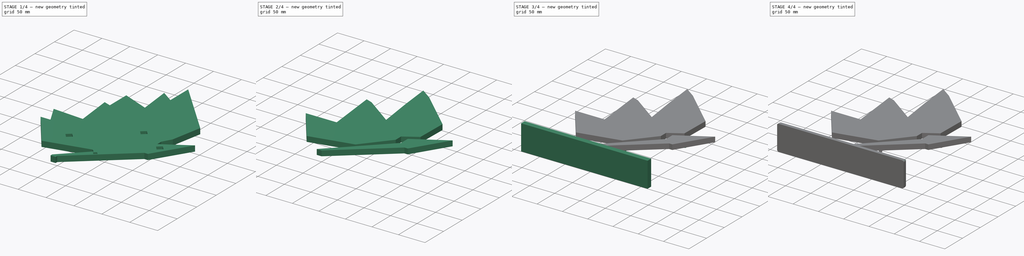
[diagram: build sequence overview — one tinted view per stage of 4, left to right]
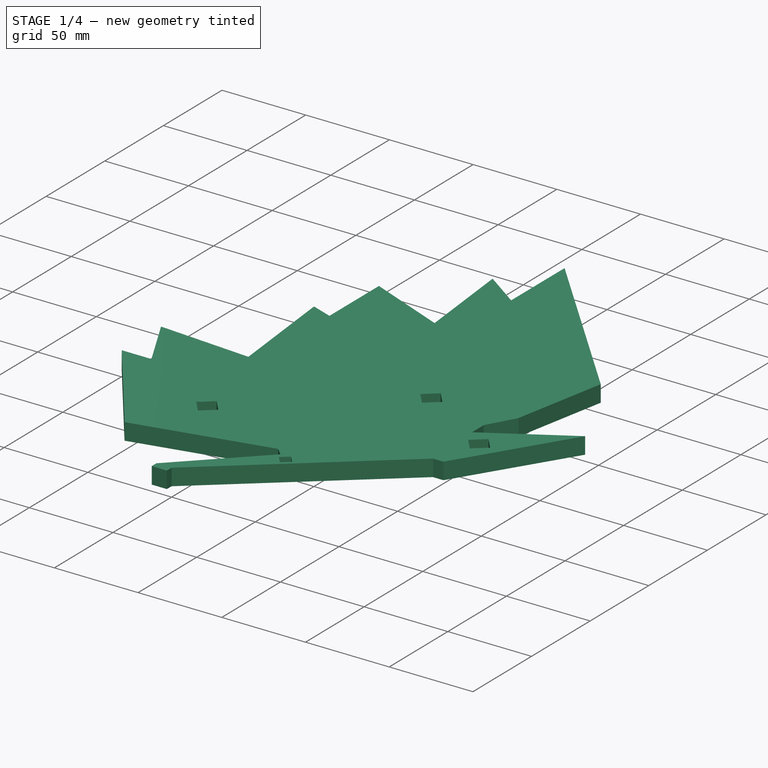
[diagram: stage 1 of 4 — iso view after this stage's code; geometry added in this stage tinted green]
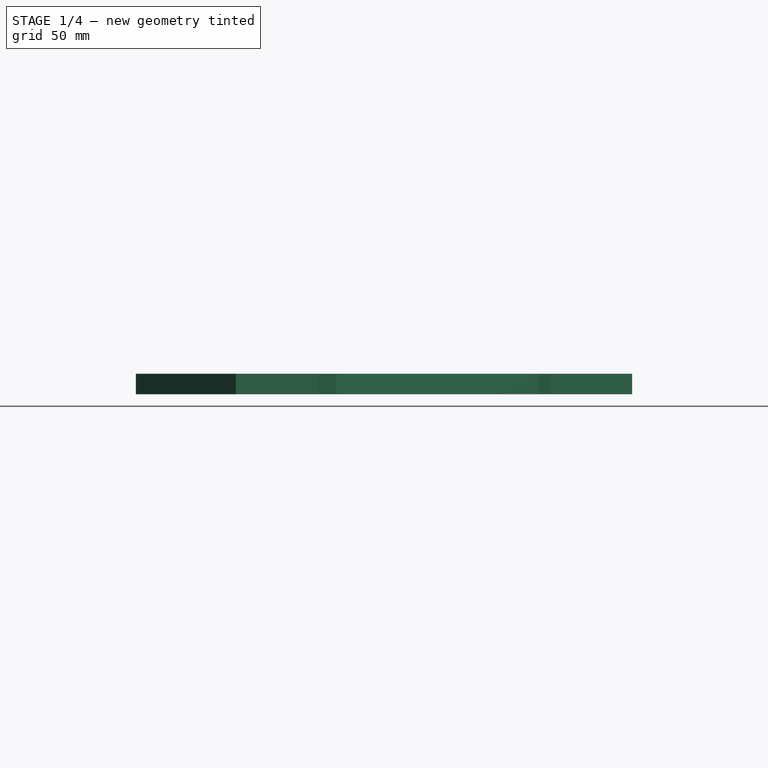
[diagram: stage 1 of 4 — front view after this stage's code; geometry added in this stage tinted green]
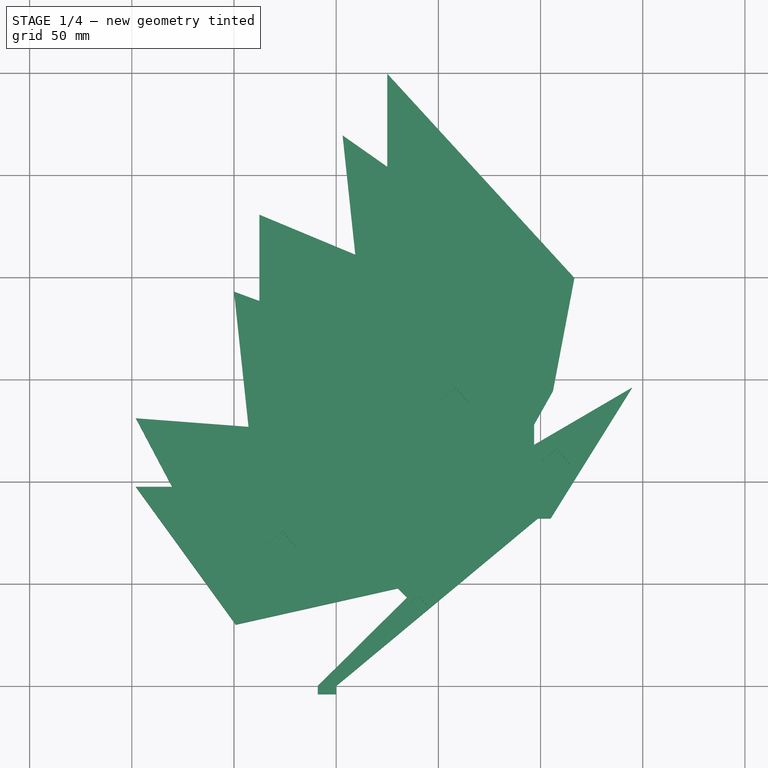
[diagram: stage 1 of 4 — top view after this stage's code; geometry added in this stage tinted green]
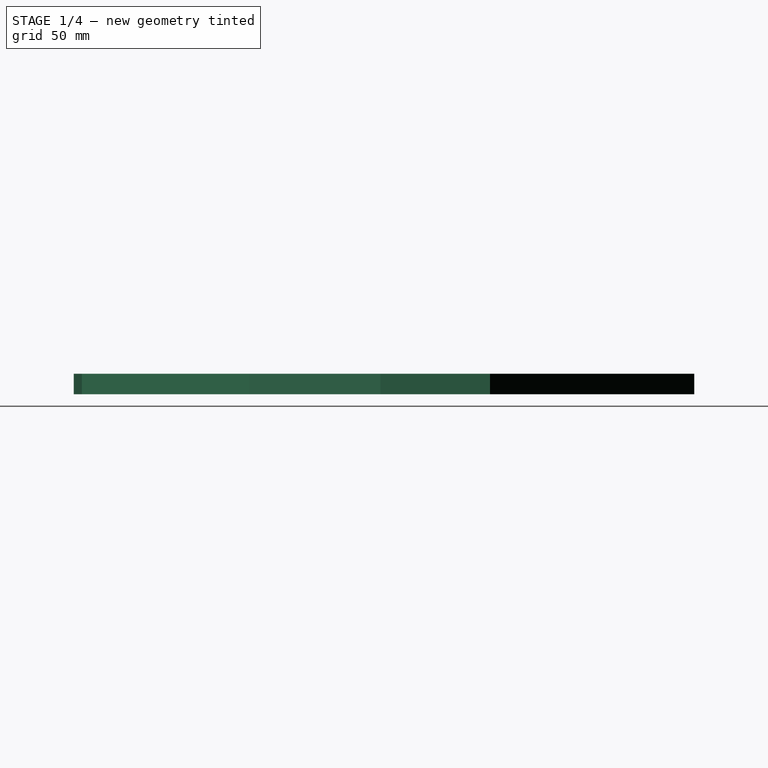
[diagram: stage 1 of 4 — right view after this stage's code; geometry added in this stage tinted green]
FCSTD DOCUMENT  (FreeCAD 0.21R33771 (Git))
Label: Monarch_v2
License: All rights reserved
LicenseURL: https://en.wikipedia.org/wiki/All_rights_reserved
objects: Sketcher::SketchObject×8, PartDesign::Pad×7, PartDesign::Body×4, PartDesign::ShapeBinder×3, PartDesign::Pocket×2, PartDesign::Fillet×2, Image::ImagePlane×1
note: 37 computed .brp shape members not serialized (recipe doc carries the construction recipe); baked Part::Feature solids carry a one-line shape summary decoded from their .brp

FEATURE [Sketcher::SketchObject] Sketch
  FullyConstrained = true
  MapMode = 5
  Support = -> [XY_Plane]
  sketch-geometry (23):
    g0: LineSegment StartX=0 StartY=0 StartZ=0 EndX=98.6905 EndY=82.0291 EndZ=0
    g1: LineSegment StartX=98.6905 StartY=82.0291 StartZ=0 EndX=104.941 EndY=82.0291 EndZ=0
    g2: LineSegment StartX=104.941 StartY=82.0291 StartZ=0 EndX=144.813 EndY=146.012 EndZ=0
    g3: LineSegment StartX=144.813 StartY=146.012 StartZ=0 EndX=96.8168 EndY=117.965 EndZ=0
    g4: LineSegment StartX=96.8168 StartY=117.965 StartZ=0 EndX=96.8168 EndY=127.98 EndZ=0
    g5: LineSegment StartX=96.8168 StartY=127.98 StartZ=0 EndX=106.058 EndY=144.386 EndZ=0
    g6: LineSegment StartX=106.058 StartY=144.386 StartZ=0 EndX=116.552 EndY=199.659 EndZ=0
    g7: LineSegment StartX=116.552 StartY=199.659 StartZ=0 EndX=24.9483 EndY=299.626 EndZ=0
    g8: LineSegment StartX=24.9483 StartY=299.626 StartZ=0 EndX=24.9483 EndY=254.066 EndZ=0
    g9: LineSegment StartX=24.9483 StartY=254.066 StartZ=0 EndX=3.13638 EndY=269.396 EndZ=0
    g10: LineSegment StartX=3.13638 StartY=269.396 StartZ=0 EndX=9.35371 EndY=211.026 EndZ=0
    g11: LineSegment StartX=9.35371 StartY=211.026 StartZ=0 EndX=-37.5998 EndY=230.6 EndZ=0
    g12: LineSegment StartX=-37.5998 StartY=230.6 StartZ=0 EndX=-37.5998 EndY=188.37 EndZ=0
    g13: LineSegment StartX=-37.5998 StartY=188.37 StartZ=0 EndX=-50.001 EndY=192.95 EndZ=0
    g14: LineSegment StartX=-50.001 StartY=192.95 StartZ=0 EndX=-42.8819 EndY=126.772 EndZ=0
    g15: LineSegment StartX=-42.8819 StartY=126.772 StartZ=0 EndX=-97.9927 EndY=130.964 EndZ=0
    g16: LineSegment StartX=-97.9927 StartY=130.964 StartZ=0 EndX=-80.2804 EndY=97.4687 EndZ=0
    g17: LineSegment StartX=-80.2804 StartY=97.4687 StartZ=0 EndX=-98.0404 EndY=97.4687 EndZ=0
    g18: LineSegment StartX=-98.0404 StartY=97.4687 StartZ=0 EndX=-49.1249 EndY=30.0187 EndZ=0
    g19: LineSegment StartX=-49.1249 StartY=30.0187 StartZ=0 EndX=30.198 EndY=47.7931 EndZ=0
    g20: LineSegment StartX=30.198 StartY=47.7931 StartZ=0 EndX=34.6662 EndY=43.2811 EndZ=0
    g21: LineSegment StartX=34.6662 StartY=43.2811 StartZ=0 EndX=-9.04 EndY=0 EndZ=0
    g22: LineSegment StartX=-9.04 StartY=0 StartZ=0 EndX=0 EndY=0 EndZ=0
  constraints (68):
    c: Coincident(g-1,g0)
    c: Coincident(g0,g1)
    c: Horizontal(g1)
    c: Coincident(g1,g2)
    c: Coincident(g2,g3)
    c: Coincident(g3,g4)
    c: Vertical(g4)
    c: Coincident(g4,g5)
    c: Coincident(g5,g6)
    c: Coincident(g6,g7)
    c: Coincident(g7,g8)
    c: Vertical(g8)
    c: Coincident(g8,g9)
    c: Coincident(g9,g10)
    c: Coincident(g10,g11)
    c: Coincident(g11,g12)
    c: Vertical(g12)
    c: Coincident(g12,g13)
    c: Coincident(g13,g14)
    c: Coincident(g14,g15)
    c: Coincident(g15,g16)
    c: Coincident(g16,g17)
    c: Horizontal(g17)
    c: Coincident(g17,g18)
    c: Coincident(g18,g19)
    c: Coincident(g19,g20)
    c: Coincident(g20,g21)
    c: PointOnObject(g21,g-1)
    c: Coincident(g21,g22)
    c: Coincident(g22,g0)
    c: Angle(g20,g21) = 1.5708
    c: Angle(g22,g21) = 0.780511
    c: DistanceX(g22,g22) = 9.04
    c: Distance(g21) = 61.51
    c: Distance(g20) = 6.35
    c: Angle(g19,g20) = 2.13087
    c: Distance(g19) = 81.29
    c: Angle(g19,g18) = 1.97781
    c: Distance(g18) = 83.32
    c: DistanceX(g17,g17) = 17.76
    c: Angle(g16,g17) = 1.08437
    c: Distance(g16) = 37.89
    c: Angle(g16,g15) = 1.00845
    c: Distance(g15) = 55.27
    c: Angle(g14,g15) = 1.38771
    c: Distance(g14) = 66.56
    c: Angle(g14,g13) = 1.10985
    c: Distance(g13) = 13.22
    c: DistanceY(g12,g12) = 42.23
    c: Angle(g12,g11) = 1.17583
    c: Distance(g11) = 50.87
    c: Angle(g10,g11) = 1.06971
    c: Distance(g10) = 58.7
    c: Angle(g10,g9) = 0.85207
    c: Distance(g9) = 26.66
    c: DistanceY(g8,g8) = 45.56
    c: Angle(g8,g7) = 0.741765
    c: Distance(g7) = 135.59
    c: Angle(g7,g6) = 2.2122
    c: Angle(g6,g5) = 2.81626
    c: Distance(g6) = 56.26
    c: Distance(g5) = 18.83
    c: Distance(g0) = 128.33
    c: Distance(g1) = 6.25
    c: Angle(g2,g1) = 2.12808
    c: Distance(g2) = 75.39
    c: Angle(g3,g2) = 0.484678
    c: Distance(g3) = 55.59
FEATURE [Image::ImagePlane] k1y02ft4k2461
  Placement = pos=(23.5,150,0) rot=(0,0,1;0rad)
  XSize = 244.289
  YSize = 300.835
FEATURE [PartDesign::Pad] Pad
  Direction = (0,0,1)
  Length = 10
  Length2 = 10
  Profile = -> Sketch
  ReferenceAxis = -> Sketch [N_Axis]
  Type = 0
FEATURE [Sketcher::SketchObject] Sketch001
  ExternalGeometry = -> [Pad]
  FullyConstrained = true
  MapMode = 5
  Placement = pos=(0,0,10) rot=(0,0,1;0rad)
  Support = -> [Pad]
  sketch-geometry (20):
    g0: LineSegment StartX=-33.8439 StartY=69.3944 StartZ=0 EndX=-27.4518 EndY=61.704 EndZ=0
    g1: LineSegment StartX=-27.4518 StartY=61.704 StartZ=0 EndX=-19.7615 EndY=68.0961 EndZ=0
    g2: LineSegment StartX=-19.7615 StartY=68.0961 StartZ=0 EndX=-26.1535 EndY=75.7864 EndZ=0
    g3: LineSegment StartX=-26.1535 StartY=75.7864 StartZ=0 EndX=-33.8439 EndY=69.3944 EndZ=0
    g4: LineSegment StartX=50.7502 StartY=139.707 StartZ=0 EndX=57.1422 EndY=132.016 EndZ=0
    g5: LineSegment StartX=57.1422 StartY=132.016 StartZ=0 EndX=64.8326 EndY=138.409 EndZ=0
    g6: LineSegment StartX=64.8326 StartY=138.409 StartZ=0 EndX=58.4406 EndY=146.099 EndZ=0
    g7: LineSegment StartX=58.4406 StartY=146.099 StartZ=0 EndX=50.7502 EndY=139.707 EndZ=0
    g8: LineSegment StartX=-19.7615 StartY=68.0961 StartZ=0 EndX=57.1422 EndY=132.016 EndZ=0
    g9: LineSegment StartX=57.1422 StartY=132.016 StartZ=0 EndX=98.6905 EndY=82.0291 EndZ=0
    g10: LineSegment StartX=-19.7615 StartY=68.0961 StartZ=0 EndX=21.7868 EndY=18.1087 EndZ=0
    g11: LineSegment StartX=100.298 StartY=109.719 StartZ=0 EndX=106.691 EndY=102.029 EndZ=0
    g12: LineSegment StartX=106.691 StartY=102.029 StartZ=0 EndX=114.381 EndY=108.421 EndZ=0
    g13: LineSegment StartX=114.381 StartY=108.421 StartZ=0 EndX=107.989 EndY=116.111 EndZ=0
    g14: LineSegment StartX=107.989 StartY=116.111 StartZ=0 EndX=100.298 EndY=109.719 EndZ=0
    g15: LineSegment StartX=35.8991 StartY=40.2411 StartZ=0 EndX=39.7343 EndY=35.6268 EndZ=0
    g16: LineSegment StartX=39.7343 StartY=35.6268 StartZ=0 EndX=44.3486 EndY=39.4621 EndZ=0
    g17: LineSegment StartX=44.3486 StartY=39.4621 StartZ=0 EndX=40.5133 EndY=44.0763 EndZ=0
    g18: LineSegment StartX=40.5133 StartY=44.0763 StartZ=0 EndX=35.8991 EndY=40.2411 EndZ=0
    g19: LineSegment StartX=39.7343 StartY=35.6268 StartZ=0 EndX=41.0127 EndY=34.0888 EndZ=0
  constraints (58):
    c: Coincident(g0,g1)
    c: Coincident(g1,g2)
    c: Coincident(g2,g3)
    c: Coincident(g3,g0)
    c: Parallel(g3,g1)
    c: Parallel(g0,g2)
    c: Angle(g1,g0) = 1.5708
    c: Equal(g0,g1)
    c: Parallel(g1,g-3)
    c: Coincident(g4,g5)
    c: Coincident(g5,g6)
    c: Coincident(g6,g7)
    c: Coincident(g7,g4)
    c: Equal(g4,g5)
    c: Parallel(g4,g6)
    c: Parallel(g7,g5)
    c: Angle(g5,g4) = 1.5708
    c: Parallel(g1,g5)
    c: Equal(g2,g4)
    c: Distance(g1) = 10
    c: Coincident(g8,g1)
    c: Coincident(g8,g4)
    c: Parallel(g1,g8)
    c: Coincident(g9,g4)
    c: Coincident(g9,g-3)
    c: Angle(g9,g-3) = 1.5708
    c: Coincident(g10,g1)
    c: PointOnObject(g10,g-3)
    c: Parallel(g10,g9)
    c: Distance(g10) = 65
    c: Distance(g8) = 100
    c: Coincident(g11,g12)
    c: Coincident(g12,g13)
    c: Coincident(g13,g14)
    c: Coincident(g14,g11)
    c: Parallel(g11,g13)
    c: Parallel(g14,g12)
    c: Angle(g12,g11) = 1.5708
    c: Parallel(g12,g-3)
    c: Equal(g11,g12)
    c: Equal(g6,g13)
    c: Coincident(g15,g16)
    c: Coincident(g16,g17)
    c: Coincident(g17,g18)
    c: Coincident(g18,g15)
    c: Equal(g15,g16)
    c: Parallel(g15,g17)
    c: Parallel(g18,g16)
    c: Angle(g16,g15) = 1.5708
    c: Parallel(g16,g-3)
    c: DistanceX(g9,g11) = 8
    c: DistanceY(g9,g11) = 20
    c: Distance(g15) = 6
    c: Coincident(g19,g15)
    c: PointOnObject(g19,g-3)
    c: Angle(g-3,g19) = 1.5708
    c: Distance(g19) = 2
    c: Distance(g9,g19) = 75
FEATURE [PartDesign::Pocket] Pocket
  BaseFeature = -> Pad
  Direction = (0,0,-1)
  Length = 5
  Length2 = 5
  Profile = -> Sketch001
  ReferenceAxis = -> Sketch001 [N_Axis]
  Type = 0
FEATURE [PartDesign::Pad] Pad001
  BaseFeature = -> Pocket
  Direction = (0,-1,0)
  Length = 4
  Length2 = 10
  Profile = -> Pocket [Face2]
  Type = 0
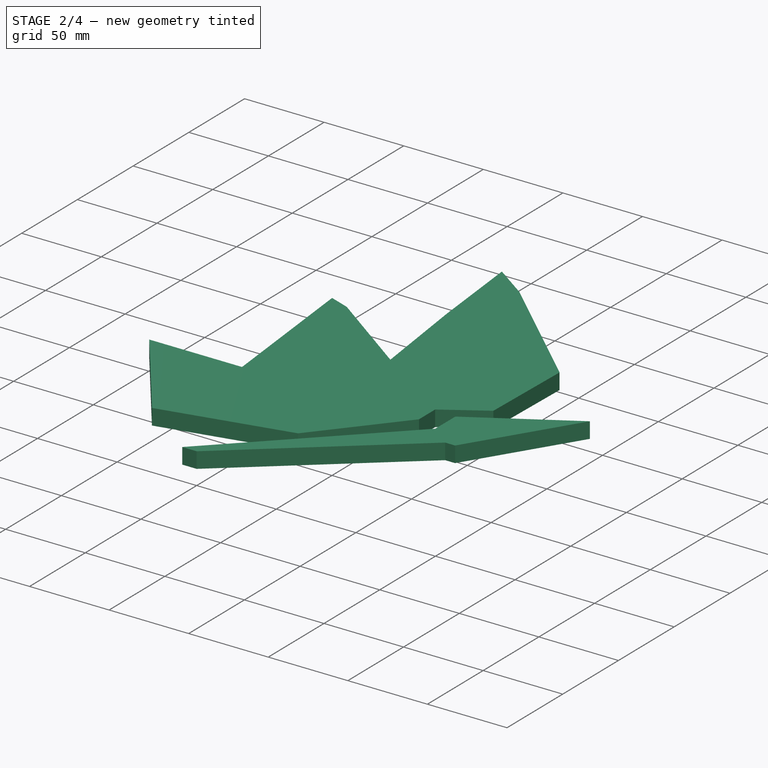
[diagram: stage 2 of 4 — iso view after this stage's code; geometry added in this stage tinted green]
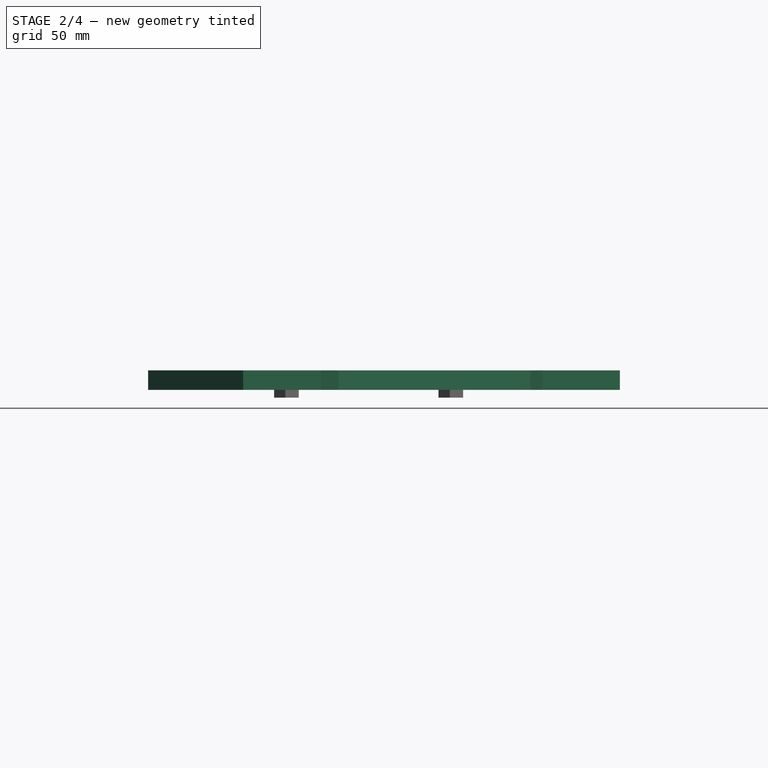
[diagram: stage 2 of 4 — front view after this stage's code; geometry added in this stage tinted green]
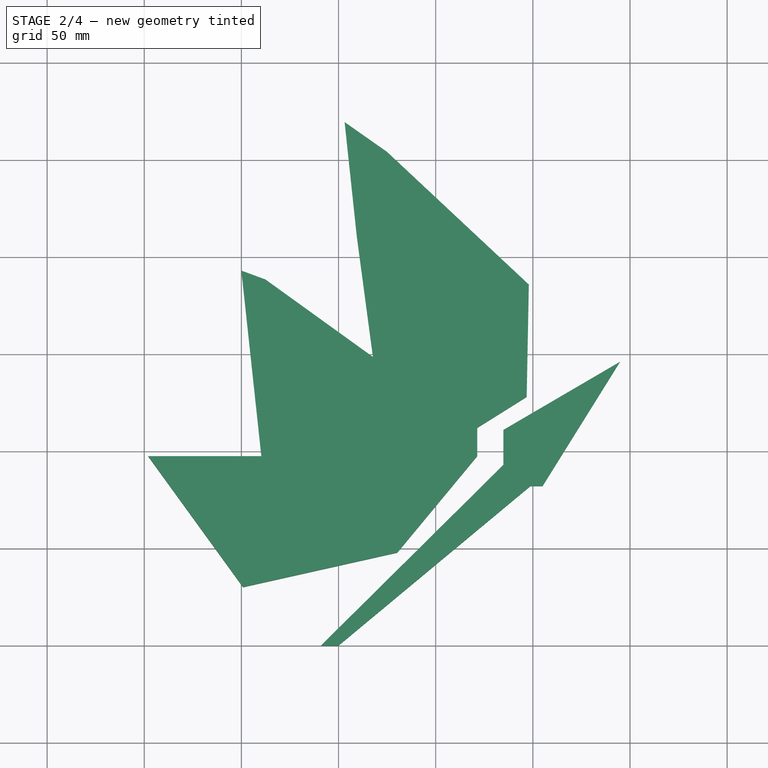
[diagram: stage 2 of 4 — top view after this stage's code; geometry added in this stage tinted green]
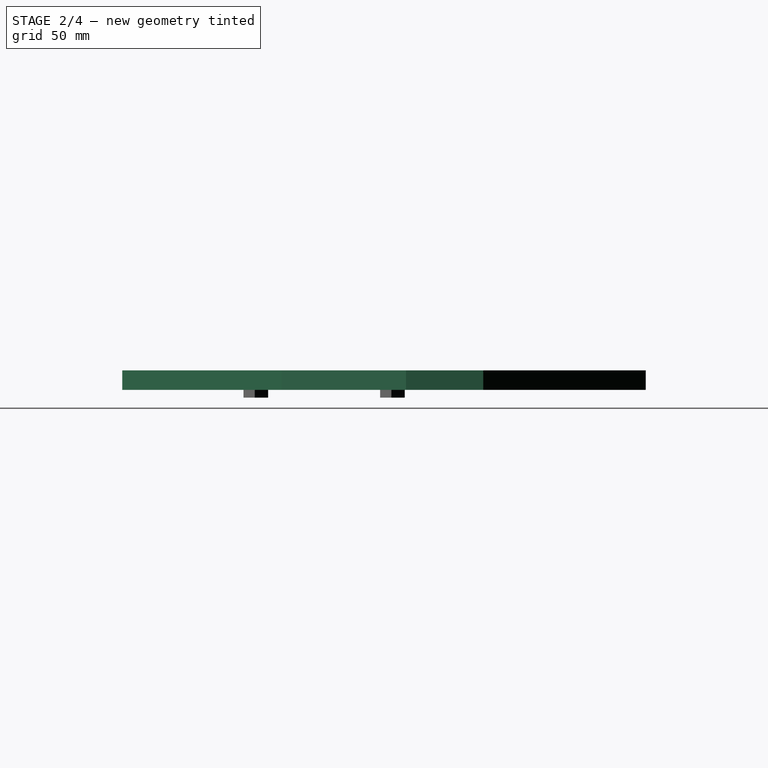
[diagram: stage 2 of 4 — right view after this stage's code; geometry added in this stage tinted green]
FEATURE [PartDesign::Body] Body001  label="Foot"
  Group = -> [ShapeBinder,Sketch002,Pad002,Sketch003,Pocket001,Fillet,Fillet001]
  Origin = -> Origin001
  Tip = -> Fillet001
FEATURE [PartDesign::ShapeBinder] ShapeBinder001
  Support = -> [Pad001]
  TraceSupport = false
FEATURE [Sketcher::SketchObject] Sketch004
  ExternalGeometry = -> [ShapeBinder001]
  FullyConstrained = true
  MapMode = 5
  Placement = pos=(0,0,10) rot=(0,0,1;0rad)
  Support = -> [ShapeBinder001]
  sketch-geometry (14):
    g0: LineSegment StartX=30.198 StartY=47.7931 StartZ=0 EndX=-49.1249 EndY=30.0187 EndZ=0
    g1: LineSegment StartX=-49.1249 StartY=30.0187 StartZ=0 EndX=-98.0404 EndY=97.4687 EndZ=0
    g2: LineSegment StartX=-98.0404 StartY=97.4687 StartZ=0 EndX=-39.7296 EndY=97.4687 EndZ=0
    g3: LineSegment StartX=-50.001 StartY=192.95 StartZ=0 EndX=-39.7296 EndY=97.4687 EndZ=0
    g4: LineSegment StartX=-50.001 StartY=192.95 StartZ=0 EndX=-37.5998 EndY=188.37 EndZ=0
    g5: LineSegment StartX=-37.5998 StartY=188.37 StartZ=0 EndX=17.6938 EndY=148.52 EndZ=0
    g6: LineSegment StartX=3.13638 StartY=269.396 StartZ=0 EndX=24.9483 EndY=254.066 EndZ=0
    g7: LineSegment StartX=24.9483 StartY=254.066 StartZ=0 EndX=97.9266 EndY=185.774 EndZ=0
    g8: LineSegment StartX=97.9266 StartY=185.774 StartZ=0 EndX=96.8168 EndY=127.98 EndZ=0
    g9: LineSegment StartX=96.8168 StartY=127.98 StartZ=0 EndX=71.3921 EndY=112.055 EndZ=0
    g10: LineSegment StartX=71.3921 StartY=112.055 StartZ=0 EndX=71.3921 EndY=97.4997 EndZ=0
    g11: LineSegment StartX=30.198 StartY=47.7931 StartZ=0 EndX=71.3921 EndY=97.4997 EndZ=0
    g12: LineSegment StartX=3.13638 StartY=269.396 StartZ=0 EndX=9.35371 EndY=211.026 EndZ=0
    g13: LineSegment StartX=9.35371 StartY=211.026 StartZ=0 EndX=17.6938 EndY=148.52 EndZ=0
  constraints (34):
    c: Coincident(g0,g-3)
    c: Coincident(g0,g-4)
    c: Coincident(g1,g0)
    c: Coincident(g2,g1)
    c: Horizontal(g2)
    c: Coincident(g1,g-4)
    c: Coincident(g3,g2)
    c: PointOnObject(g-5,g3)
    c: Coincident(g3,g-6)
    c: Coincident(g4,g3)
    c: Coincident(g4,g-7)
    c: Coincident(g5,g4)
    c: Coincident(g6,g-10)
    c: Coincident(g7,g6)
    c: Coincident(g8,g7)
    c: Coincident(g8,g-11)
    c: Angle(g7,g8) = 2.30383
    c: Angle(g6,g7) = 3.00197
    c: Coincident(g9,g8)
    c: Coincident(g9,g10)
    c: Vertical(g10)
    c: Coincident(g0,g11)
    c: Coincident(g11,g10)
    c: Angle(g10,g11) = 2.44957
    c: Angle(g10,g9) = 2.13035
    c: Distance(g9) = 30
    c: Coincident(g12,g6)
    c: Coincident(g12,g-9)
    c: Coincident(g13,g12)
    c: Coincident(g13,g5)
    c: Angle(g4,g5) = 2.87089
    c: Angle(g13,g5) = 0.813672
    c: Angle(g13,g12) = 3.11506
    c: Angle(g12,g6) = 0.85207
FEATURE [PartDesign::Pad] Pad003
  Direction = (0,0,1)
  Length = 10
  Length2 = 10
  Profile = -> Sketch004
  ReferenceAxis = -> Sketch004 [N_Axis]
  Type = 0
FEATURE [PartDesign::ShapeBinder] ShapeBinder002
  Support = -> [Pad001]
  TraceSupport = false
FEATURE [Sketcher::SketchObject] Sketch005
  ExternalGeometry = -> [ShapeBinder002]
  FullyConstrained = true
  MapMode = 5
  Placement = pos=(0,0,10) rot=(0,0,1;0rad)
  Support = -> [ShapeBinder002]
  sketch-geometry (7):
    g0: LineSegment StartX=-9.04 StartY=0 StartZ=0 EndX=0 EndY=0 EndZ=0
    g1: LineSegment StartX=0 StartY=0 StartZ=0 EndX=98.6905 EndY=82.0291 EndZ=0
    g2: LineSegment StartX=98.6905 StartY=82.0291 StartZ=0 EndX=104.941 EndY=82.0291 EndZ=0
    g3: LineSegment StartX=104.941 StartY=82.0291 StartZ=0 EndX=144.813 EndY=146.012 EndZ=0
    g4: LineSegment StartX=144.813 StartY=146.012 StartZ=0 EndX=84.8171 EndY=110.953 EndZ=0
    g5: LineSegment StartX=84.8171 StartY=110.953 StartZ=0 EndX=84.8171 EndY=92.9442 EndZ=0
    g6: LineSegment StartX=84.8171 StartY=92.9442 StartZ=0 EndX=-9.04 EndY=0 EndZ=0
  constraints (16):
    c: Coincident(g0,g-7)
    c: Coincident(g0,g-1)
    c: Coincident(g0,g1)
    c: Coincident(g1,g-6)
    c: Coincident(g1,g2)
    c: Coincident(g2,g-5)
    c: Coincident(g2,g3)
    c: Coincident(g3,g-4)
    c: Coincident(g3,g4)
    c: Coincident(g4,g5)
    c: Vertical(g5)
    c: Coincident(g5,g6)
    c: Coincident(g6,g0)
    c: PointOnObject(g-8,g6)
    c: PointOnObject(g-3,g4)
    c: Distance(g6) = 132.09
FEATURE [PartDesign::Pad] Pad004
  Direction = (0,0,1)
  Length = 10
  Length2 = 10
  Profile = -> Sketch005
  ReferenceAxis = -> Sketch005 [N_Axis]
  Type = 0
FEATURE [PartDesign::Body] Body003  label="FrontBody"
  Group = -> [ShapeBinder002,Sketch005,Pad004,Sketch006,Pad005]
  Origin = -> Origin003
  Tip = -> Pad005
FEATURE [Sketcher::SketchObject] Sketch007
  ExternalGeometry = -> [ShapeBinder001]
  FullyConstrained = true
  MapMode = 5
  Placement = pos=(0,0,10) rot=(1,0,0;3.14159rad)
  Support = -> [Pad003]
  sketch-geometry (14):
    g0: GeomPoint X=57.7914 Y=-139.058 Z=0
    g1: GeomPoint X=-26.8027 Y=-68.7452 Z=0
    g2: LineSegment StartX=58.3757 StartY=-145.395 StartZ=0 EndX=64.1285 EndY=-138.473 EndZ=0
    g3: LineSegment StartX=64.1285 StartY=-138.473 StartZ=0 EndX=57.2072 EndY=-132.721 EndZ=0
    g4: LineSegment StartX=57.2072 StartY=-132.721 StartZ=0 EndX=51.4543 EndY=-139.642 EndZ=0
    g5: LineSegment StartX=51.4543 StartY=-139.642 StartZ=0 EndX=58.3757 EndY=-145.395 EndZ=0
    g6: GeomPoint X=57.7914 Y=-139.058 Z=0
    g7: LineSegment StartX=-20.4656 StartY=-68.161 StartZ=0 EndX=-26.2184 EndY=-75.0823 EndZ=0
    g8: LineSegment StartX=-26.2184 StartY=-75.0823 StartZ=0 EndX=-33.1397 EndY=-69.3295 EndZ=0
    g9: LineSegment StartX=-33.1397 StartY=-69.3295 StartZ=0 EndX=-27.3869 EndY=-62.4081 EndZ=0
    g10: LineSegment StartX=-27.3869 StartY=-62.4081 StartZ=0 EndX=-20.4656 EndY=-68.161 EndZ=0
    g11: GeomPoint X=-26.8027 Y=-68.7452 Z=0
    g12: LineSegment StartX=-20.4656 StartY=-68.161 StartZ=0 EndX=-20.146 EndY=-67.7765 EndZ=0
    g13: LineSegment StartX=64.1285 StartY=-138.473 StartZ=0 EndX=64.4481 EndY=-138.089 EndZ=0
  constraints (32):
    c: Symmetric(g-6,g-5,g1)
    c: Symmetric(g-4,g-3,g0)
    c: Coincident(g2,g3)
    c: Coincident(g3,g4)
    c: Coincident(g4,g5)
    c: Coincident(g5,g2)
    c: Symmetric(g3,g2,g6)
    c: Coincident(g6,g0)
    c: Parallel(g3,g5)
    c: Parallel(g2,g4)
    c: Equal(g3,g2)
    c: Angle(g3,g2) = 1.5708
    c: Coincident(g7,g8)
    c: Coincident(g8,g9)
    c: Coincident(g9,g10)
    c: Coincident(g10,g7)
    c: Symmetric(g8,g7,g11)
    c: Coincident(g11,g1)
    c: Equal(g10,g7)
    c: Parallel(g7,g9)
    c: Parallel(g10,g8)
    c: Angle(g10,g7) = 1.5708
    c: Parallel(g-6,g10)
    c: Coincident(g12,g7)
    c: PointOnObject(g12,g-6)
    c: Coincident(g13,g2)
    c: PointOnObject(g13,g-4)
    c: Parallel(g13,g2)
    c: Distance(g13) = 0.5
    c: Angle(g-4,g13) = 1.5708
    c: Parallel(g12,g7)
    c: Distance(g12) = 0.5
FEATURE [PartDesign::Pad] Pad006
  BaseFeature = -> Pad003
  Direction = (0,0,-1)
  Length = 4
  Length2 = 10
  Profile = -> Sketch007
  ReferenceAxis = -> Sketch007 [N_Axis]
  Type = 0
FEATURE [PartDesign::Body] Body002  label="FrontWings"
  Group = -> [ShapeBinder001,Sketch004,Pad003,Sketch007,Pad006]
  Origin = -> Origin002
  Tip = -> Pad006
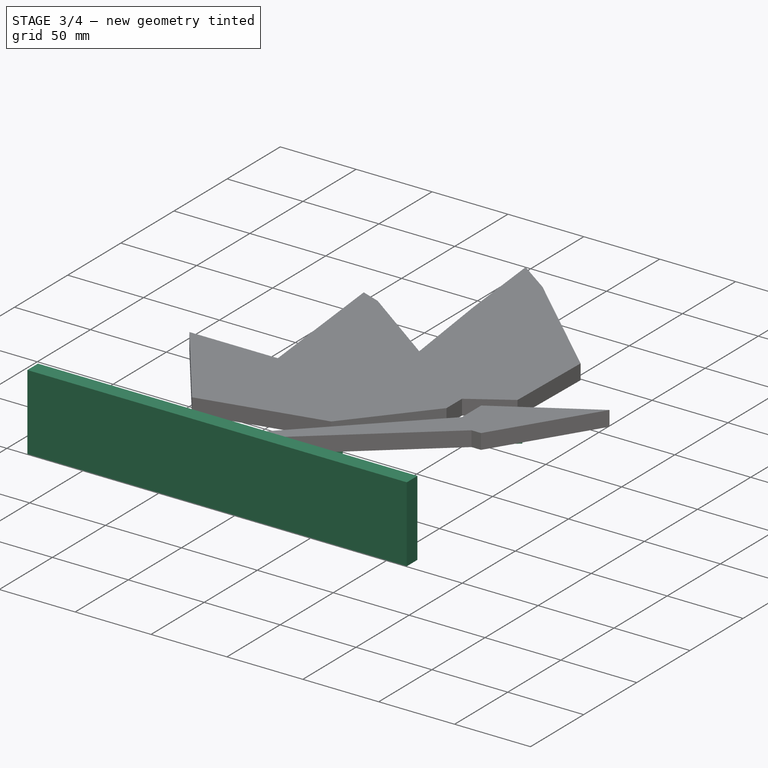
[diagram: stage 3 of 4 — iso view after this stage's code; geometry added in this stage tinted green]
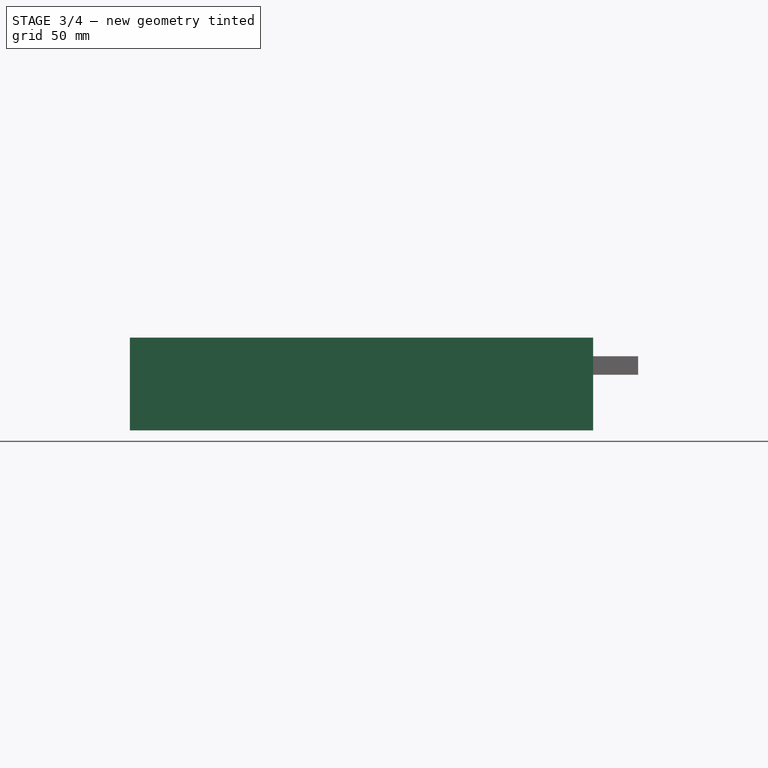
[diagram: stage 3 of 4 — front view after this stage's code; geometry added in this stage tinted green]
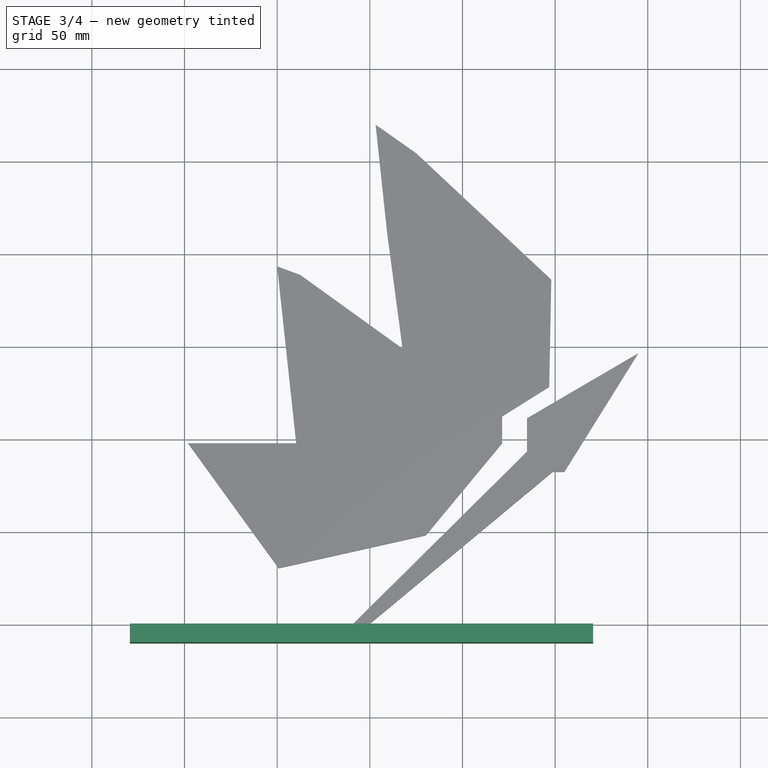
[diagram: stage 3 of 4 — top view after this stage's code; geometry added in this stage tinted green]
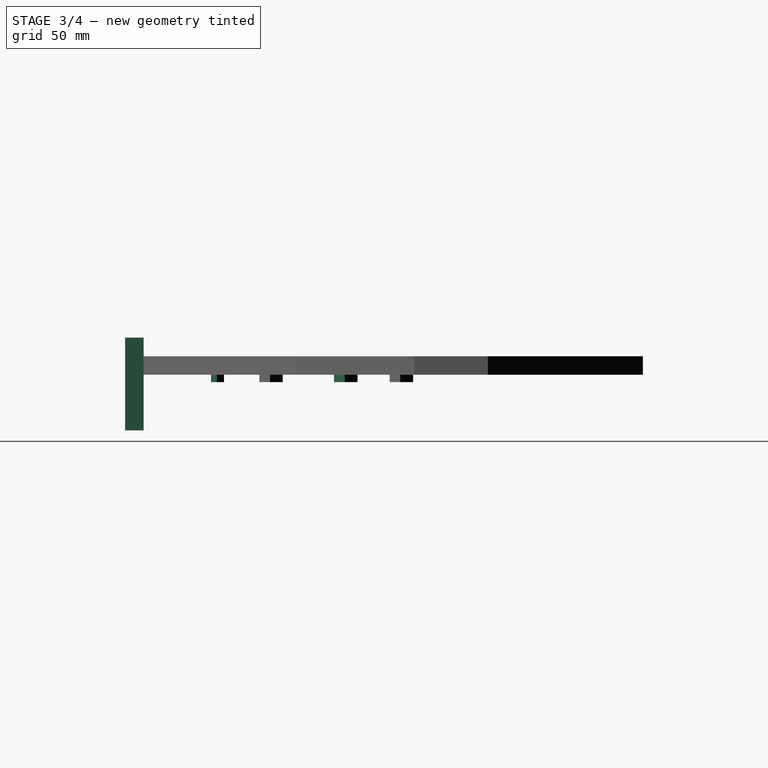
[diagram: stage 3 of 4 — right view after this stage's code; geometry added in this stage tinted green]
FEATURE [PartDesign::Body] Body  label="Back"
  Group = -> [Sketch,Pad,Sketch001,Pocket,Pad001]
  Origin = -> Origin
  Tip = -> Pad001
FEATURE [PartDesign::ShapeBinder] ShapeBinder
  Support = -> [Pocket]
  TraceSupport = false
FEATURE [Sketcher::SketchObject] Sketch002
  ExternalGeometry = -> [ShapeBinder]
  FullyConstrained = true
  MapMode = 5
  Placement = pos=(0,0,0) rot=(1,0,0;1.5708rad)
  Support = -> [ShapeBinder]
  sketch-geometry (6):
    g0: GeomPoint X=-4.52 Y=5 Z=0
    g1: LineSegment StartX=-129.52 StartY=30 StartZ=0 EndX=-129.52 EndY=-20 EndZ=0
    g2: LineSegment StartX=-129.52 StartY=-20 StartZ=0 EndX=120.48 EndY=-20 EndZ=0
    g3: LineSegment StartX=120.48 StartY=-20 StartZ=0 EndX=120.48 EndY=30 EndZ=0
    g4: LineSegment StartX=120.48 StartY=30 StartZ=0 EndX=-129.52 EndY=30 EndZ=0
    g5: GeomPoint X=-4.52 Y=5 Z=0
  constraints (13):
    c: Symmetric(g-3,g-1,g0)
    c: Coincident(g1,g2)
    c: Coincident(g2,g3)
    c: Coincident(g3,g4)
    c: Coincident(g4,g1)
    c: Horizontal(g2)
    c: Horizontal(g4)
    c: Vertical(g1)
    c: Vertical(g3)
    c: Symmetric(g2,g1,g5)
    c: Coincident(g5,g0)
    c: DistanceY(g3,g3) = 50
    c: DistanceX(g4,g4) = 250
FEATURE [PartDesign::Pad] Pad002
  Direction = (0,-1,2e-16)
  Length = 10
  Length2 = 10
  Profile = -> Sketch002
  ReferenceAxis = -> Sketch002 [N_Axis]
  Type = 0
FEATURE [Sketcher::SketchObject] Sketch006
  ExternalGeometry = -> [ShapeBinder002]
  FullyConstrained = true
  MapMode = 5
  Placement = pos=(0,0,10) rot=(1,0,0;3.14159rad)
  Support = -> [Pad004]
  sketch-geometry (15):
    g0: GeomPoint X=107.34 Y=-109.07 Z=0
    g1: GeomPoint X=40.1238 Y=-39.8516 Z=0
    g2: LineSegment StartX=113.677 StartY=-108.486 StartZ=0 EndX=107.924 EndY=-115.407 EndZ=0
    g3: LineSegment StartX=107.924 StartY=-115.407 StartZ=0 EndX=101.003 EndY=-109.655 EndZ=0
    g4: LineSegment StartX=101.003 StartY=-109.655 StartZ=0 EndX=106.755 EndY=-102.733 EndZ=0
    g5: LineSegment StartX=106.755 StartY=-102.733 StartZ=0 EndX=113.677 EndY=-108.486 EndZ=0
    g6: GeomPoint X=107.34 Y=-109.07 Z=0
    g7: GeomPoint X=113.996 Y=-108.102 Z=0
    g8: LineSegment StartX=113.996 StartY=-108.102 StartZ=0 EndX=113.677 EndY=-108.486 EndZ=0
    g9: LineSegment StartX=43.6444 StartY=-39.527 StartZ=0 EndX=40.4484 EndY=-43.3722 EndZ=0
    g10: LineSegment StartX=40.4484 StartY=-43.3722 StartZ=0 EndX=36.6032 EndY=-40.1761 EndZ=0
    g11: LineSegment StartX=36.6032 StartY=-40.1761 StartZ=0 EndX=39.7993 EndY=-36.331 EndZ=0
    g12: LineSegment StartX=39.7993 StartY=-36.331 StartZ=0 EndX=43.6444 EndY=-39.527 EndZ=0
    g13: GeomPoint X=40.1238 Y=-39.8516 Z=0
    g14: LineSegment StartX=43.6444 StartY=-39.527 StartZ=0 EndX=43.964 EndY=-39.1425 EndZ=0
  constraints (33):
    c: Symmetric(g-4,g-3,g0)
    c: Symmetric(g-6,g-5,g1)
    c: Coincident(g2,g3)
    c: Coincident(g3,g4)
    c: Coincident(g4,g5)
    c: Coincident(g5,g2)
    c: Symmetric(g3,g2,g6)
    c: Coincident(g6,g0)
    c: Parallel(g5,g3)
    c: Parallel(g2,g4)
    c: Equal(g2,g5)
    c: Parallel(g5,g-7)
    c: Angle(g5,g2) = 1.5708
    c: PointOnObject(g7,g-7)
    c: Coincident(g8,g7)
    c: Coincident(g8,g2)
    c: Parallel(g8,g2)
    c: Distance(g8) = 0.5
    c: Coincident(g9,g10)
    c: Coincident(g10,g11)
    c: Coincident(g11,g12)
    c: Coincident(g12,g9)
    c: Symmetric(g10,g9,g13)
    c: Coincident(g13,g1)
    c: Angle(g12,g9) = 1.5708
    c: Equal(g9,g12)
    c: Parallel(g12,g10)
    c: Parallel(g9,g11)
    c: Parallel(g-8,g12)
    c: Coincident(g14,g9)
    c: PointOnObject(g14,g-8)
    c: Parallel(g9,g14)
    c: Distance(g14) = 0.5
FEATURE [PartDesign::Pad] Pad005
  BaseFeature = -> Pad004
  Direction = (0,0,-1)
  Length = 4
  Length2 = 10
  Profile = -> Sketch006
  ReferenceAxis = -> Sketch006 [N_Axis]
  Type = 0
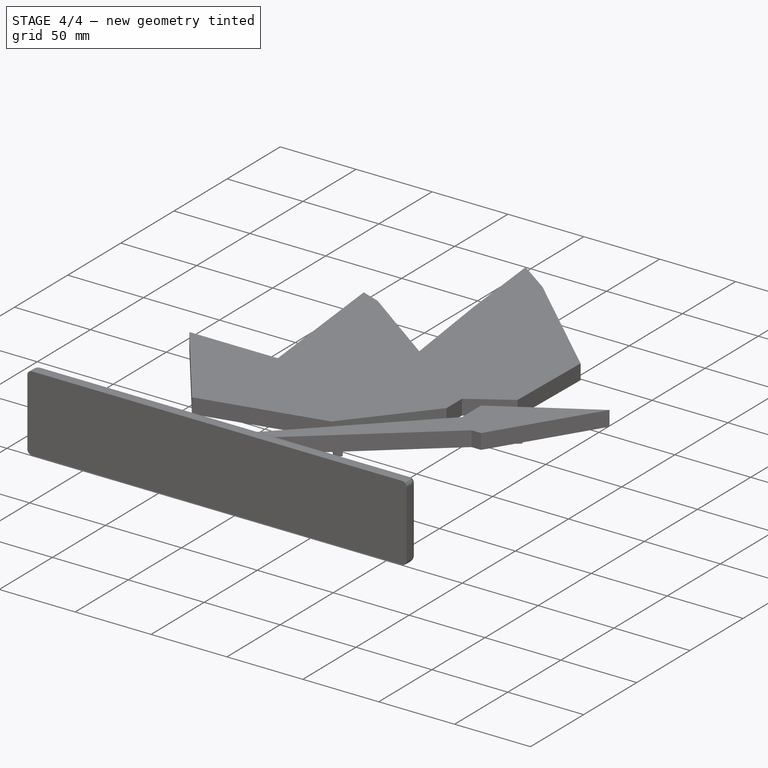
[diagram: stage 4 of 4 — iso view after this stage's code; geometry added in this stage tinted green]
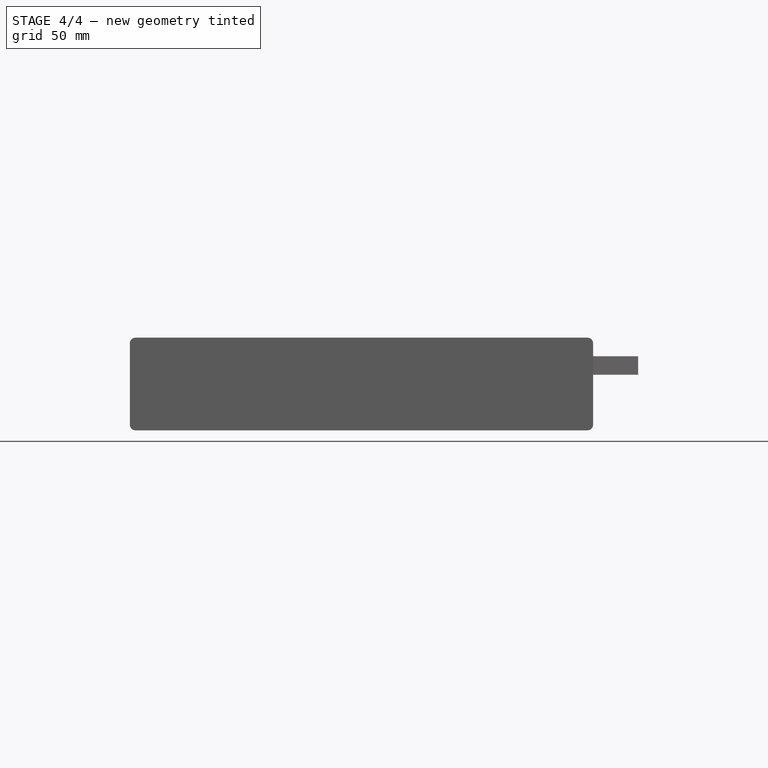
[diagram: stage 4 of 4 — front view after this stage's code; geometry added in this stage tinted green]
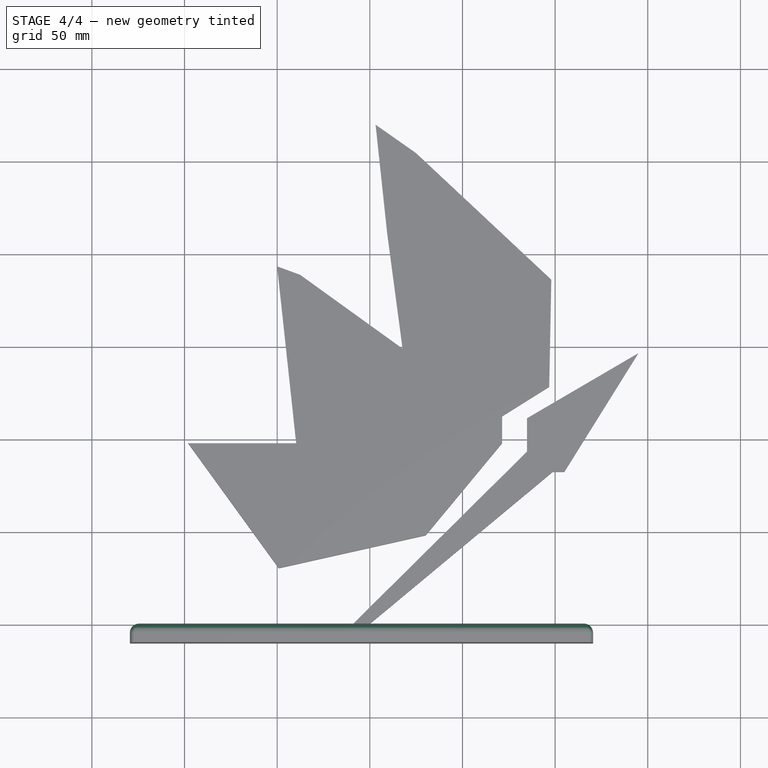
[diagram: stage 4 of 4 — top view after this stage's code; geometry added in this stage tinted green]
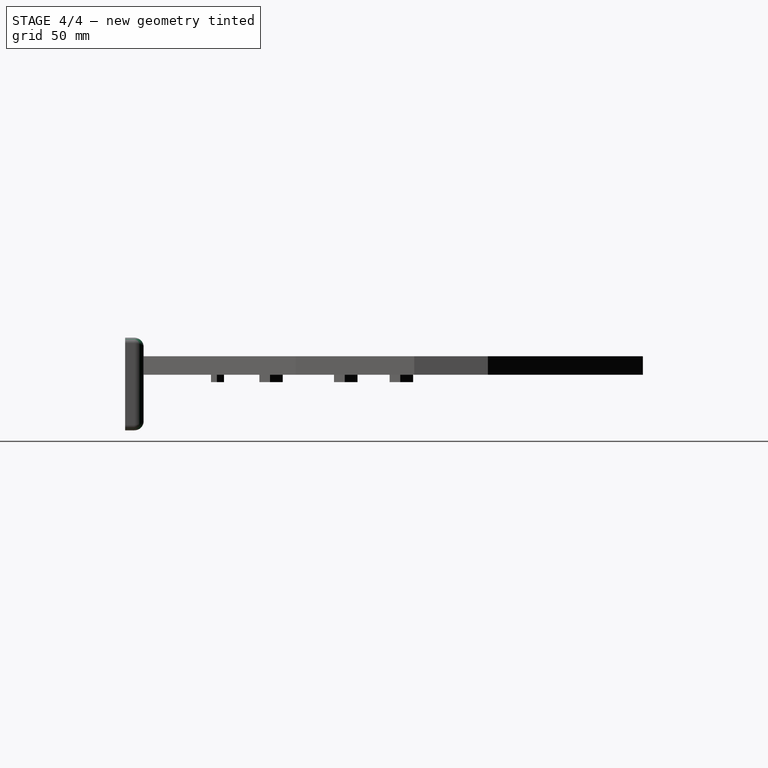
[diagram: stage 4 of 4 — right view after this stage's code; geometry added in this stage tinted green]
FEATURE [Sketcher::SketchObject] Sketch003
  ExternalGeometry = -> [ShapeBinder]
  FullyConstrained = true
  MapMode = 5
  Placement = pos=(0,0,0) rot=(0,0.707107,0.707107;3.14159rad)
  Support = -> [Pad002]
  sketch-geometry (6):
    g0: GeomPoint X=4.52 Y=5 Z=0
    g1: LineSegment StartX=-0.5 StartY=-0.5 StartZ=0 EndX=-0.5 EndY=10.5 EndZ=0
    g2: LineSegment StartX=-0.5 StartY=10.5 StartZ=0 EndX=9.54 EndY=10.5 EndZ=0
    g3: LineSegment StartX=9.54 StartY=10.5 StartZ=0 EndX=9.54 EndY=-0.5 EndZ=0
    g4: LineSegment StartX=9.54 StartY=-0.5 StartZ=0 EndX=-0.5 EndY=-0.5 EndZ=0
    g5: GeomPoint X=4.52 Y=5 Z=0
  constraints (13):
    c: Symmetric(g-1,g-3,g0)
    c: Coincident(g1,g2)
    c: Coincident(g2,g3)
    c: Coincident(g3,g4)
    c: Coincident(g4,g1)
    c: Horizontal(g2)
    c: Horizontal(g4)
    c: Vertical(g1)
    c: Vertical(g3)
    c: Symmetric(g2,g1,g5)
    c: Coincident(g5,g0)
    c: DistanceY(g-3,g2) = 0.5
    c: DistanceX(g-3,g2) = 0.5
FEATURE [PartDesign::Pocket] Pocket001
  BaseFeature = -> Pad002
  Direction = (0,-1,2e-16)
  Length = 5
  Length2 = 5
  Profile = -> Sketch003
  ReferenceAxis = -> Sketch003 [N_Axis]
  Type = 0
FEATURE [PartDesign::Fillet] Fillet
  Base = -> Pocket001 [Edge6,Edge3,Edge9,Edge11]
  BaseFeature = -> Pocket001
  Radius = 5
  SupportTransform = false
  UseAllEdges = false
FEATURE [PartDesign::Fillet] Fillet001
  Base = -> Fillet [Edge5,Edge1,Edge8,Edge16,Edge24,Edge14,Edge4,Edge10]
  BaseFeature = -> Fillet
  Radius = 3
  SupportTransform = false
  UseAllEdges = false
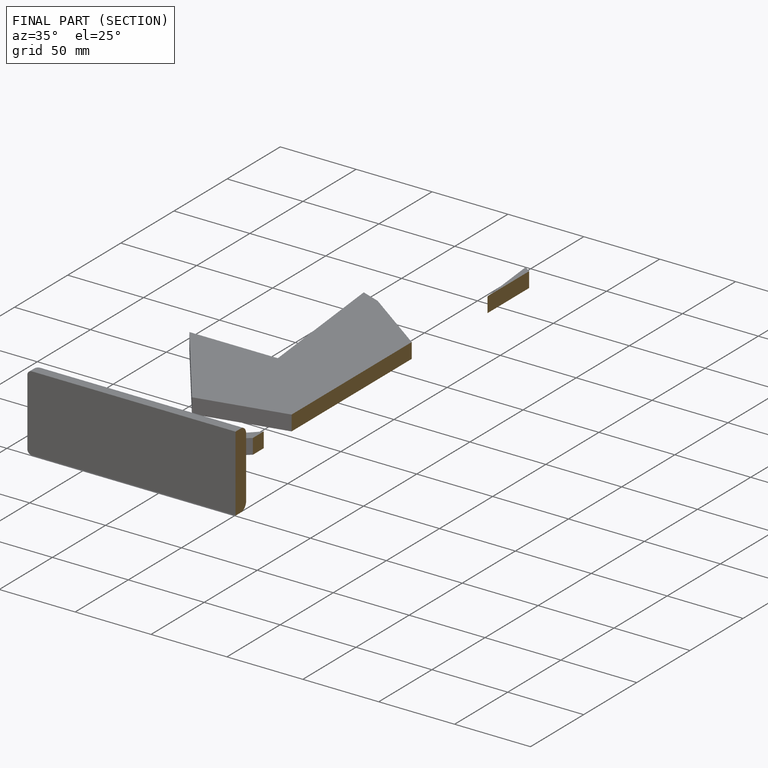
[diagram: finished part — half-section view (interior)]
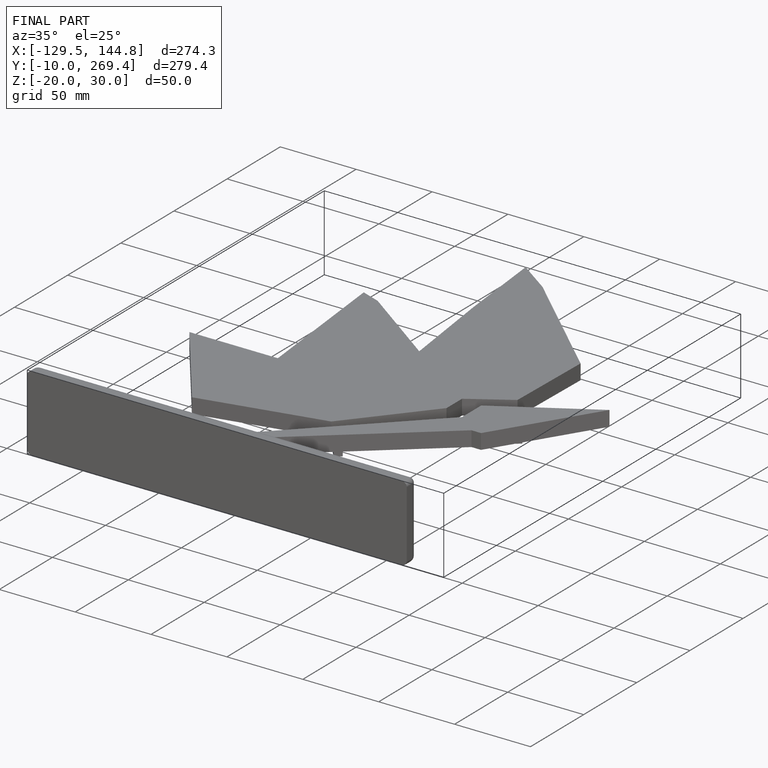
[diagram: finished part — iso view with bounding-box wireframe]
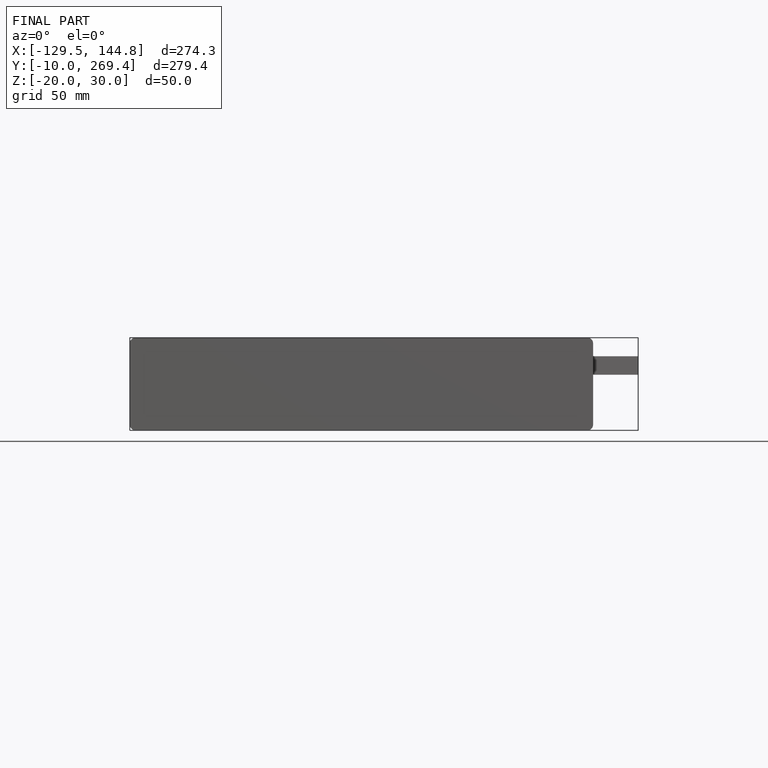
[diagram: finished part — front view with bounding-box wireframe]
